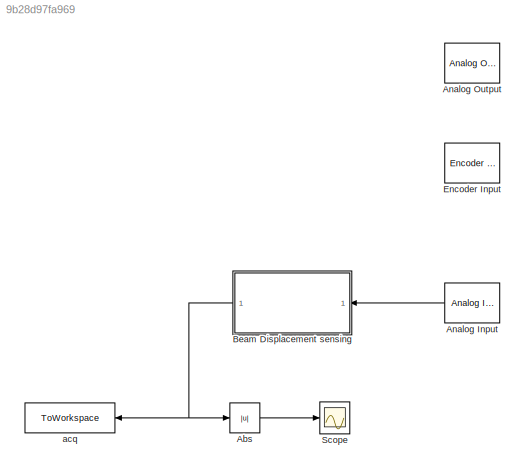
MODEL slx_9b28d97fa969
KIND model
CONFIG AbsTol = auto
CONFIG EnableMultiTasking = off
CONFIG FixedStep = 0.001
CONFIG MaxStep = auto
CONFIG MinStep = auto
CONFIG RelTol = 1e-3
CONFIG SampleTimeConstraint = Unconstrained
CONFIG SolverName = FixedStepAuto
CONFIG StartTime = 0.0
CONFIG StopTime = 100
BLOCK [Abs] Abs
  Commented = through
  SaturateOnIntegerOverflow = off
BLOCK [Reference] Analog Input  REF=sldrtlib/Analog Input
  AttributesFormatString = National Instruments\nPCIe-6321 [auto]
  NameLocation = top
  SourceBlock = sldrtlib/Analog Input
  SourceType = Simulink Desktop Real-Time Analog Input
BLOCK [Reference] Analog Output  REF=sldrtlib/Analog Output
  AttributesFormatString = National Instruments\nPCIe-6321 [auto]
  SourceBlock = sldrtlib/Analog Output
  SourceType = Simulink Desktop Real-Time Analog Output
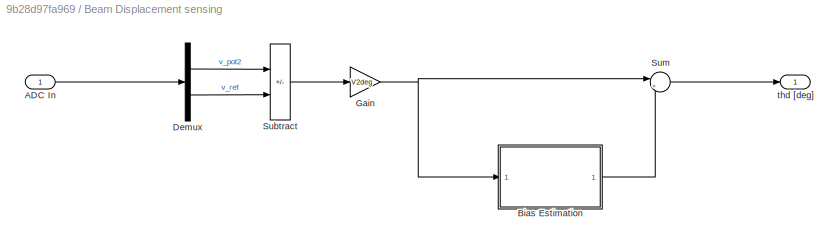
BLOCK [SubSystem] Beam Displacement sensing
  NameLocation = top
BLOCK [Inport] Beam Displacement sensing/ADC In
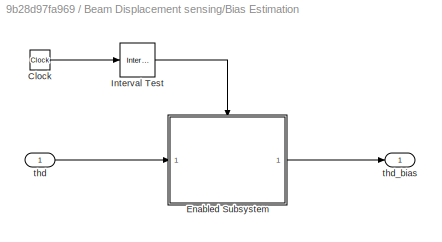
BLOCK [SubSystem] Beam Displacement sensing/Bias Estimation
BLOCK [Clock] Beam Displacement sensing/Bias Estimation/Clock
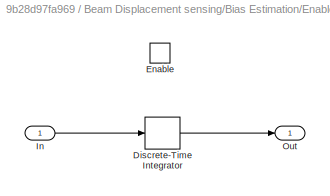
BLOCK [SubSystem] Beam Displacement sensing/Bias Estimation/Enabled Subsystem
  TreatAsAtomicUnit = on
BLOCK [DiscreteIntegrator] Beam Displacement sensing/Bias Estimation/Enabled Subsystem/Discrete-Time Integrator
  ICPrevOutput = DiscIntNeverNeededParam
  ICPrevScaledInput = DiscIntNeverNeededParam
  InitialConditionSetting = Auto
  SampleTime = -1
BLOCK [EnablePort] Beam Displacement sensing/Bias Estimation/Enabled Subsystem/Enable
BLOCK [Inport] Beam Displacement sensing/Bias Estimation/Enabled Subsystem/In
BLOCK [Outport] Beam Displacement sensing/Bias Estimation/Enabled Subsystem/Out
BLOCK [Reference] Beam Displacement sensing/Bias Estimation/Interval Test  REF=hdlsllib/Logic and Bit
Operations/Interval Test
  SourceBlock = hdlsllib/Logic and Bit\nOperations/Interval Test
  SourceType = Interval Test
BLOCK [Inport] Beam Displacement sensing/Bias Estimation/thd
BLOCK [Outport] Beam Displacement sensing/Bias Estimation/thd_bias
BLOCK [Demux] Beam Displacement sensing/Demux
  Outputs = 2
BLOCK [Gain] Beam Displacement sensing/Gain
  Gain = V2deg
BLOCK [Sum] Beam Displacement sensing/Subtract
  IconShape = rectangular
  Inputs = +-
BLOCK [Sum] Beam Displacement sensing/Sum
  Inputs = |+-
BLOCK [Outport] Beam Displacement sensing/thd [deg]
BLOCK [Reference] Encoder Input  REF=sldrtlib/Encoder Input
  AttributesFormatString = National Instruments\nPCIe-6321 [auto]
  SourceBlock = sldrtlib/Encoder Input
  SourceType = Simulink Desktop Real-Time Encoder Input
BLOCK [Scope] Scope
  Floating = off
  NumInputPorts = 1
  ScopeSpecificationString = Simulink.scopes.TimeScopeBlockCfg('CurrentConfiguration', extmgr.ConfigurationSet(extmgr.Configuration('Core','General UI',true),extmgr.Configuration('Core','Source UI',true),extmgr.Configuration('Sources','WiredSimulink',true,'DataLoggingVariableName','ScopeData1'),extmgr.Configuration('Visuals','Time Domain',true,'SerializedDisplays',{struct('MinYLimReal','-14.10791','MaxYLimReal','17.19463','YL...<+1439ch>
BLOCK [ToWorkspace] acq
  FixptAsFi = on
  MaxDataPoints = inf
  SampleTime = -1
  SaveFormat = Structure With Time
  VariableName = meas
LINE Abs:1 -> Scope:1
LINE Analog Input:1 -> Beam Displacement sensing:1
LINE Beam Displacement sensing/ADC In:1 -> Beam Displacement sensing/Demux:1
LINE Beam Displacement sensing/Bias Estimation/Clock:1 -> Beam Displacement sensing/Bias Estimation/Interval Test:1
LINE Beam Displacement sensing/Bias Estimation/Enabled Subsystem/Discrete-Time Integrator:1 -> Beam Displacement sensing/Bias Estimation/Enabled Subsystem/Out:1
LINE Beam Displacement sensing/Bias Estimation/Enabled Subsystem/In:1 -> Beam Displacement sensing/Bias Estimation/Enabled Subsystem/Discrete-Time Integrator:1
LINE Beam Displacement sensing/Bias Estimation/Enabled Subsystem:1 -> Beam Displacement sensing/Bias Estimation/thd_bias:1
LINE Beam Displacement sensing/Bias Estimation/Interval Test:1 -> Beam Displacement sensing/Bias Estimation/Enabled Subsystem:enable
LINE Beam Displacement sensing/Bias Estimation/thd:1 -> Beam Displacement sensing/Bias Estimation/Enabled Subsystem:1
LINE Beam Displacement sensing/Bias Estimation:1 -> Beam Displacement sensing/Sum:2
LINE Beam Displacement sensing/Demux:1 -> Beam Displacement sensing/Subtract:1
LINE Beam Displacement sensing/Demux:2 -> Beam Displacement sensing/Subtract:2
NET Beam Displacement sensing/Gain:1 -> Beam Displacement sensing/Bias Estimation:1, Beam Displacement sensing/Sum:1
LINE Beam Displacement sensing/Subtract:1 -> Beam Displacement sensing/Gain:1
LINE Beam Displacement sensing/Sum:1 -> Beam Displacement sensing/thd [deg]:1
NET Beam Displacement sensing:1 -> Abs:1, acq:1
note: NET lines group one-source signal fan-out (src -> all destinations, sorted); 1:1 wires keep LINE
